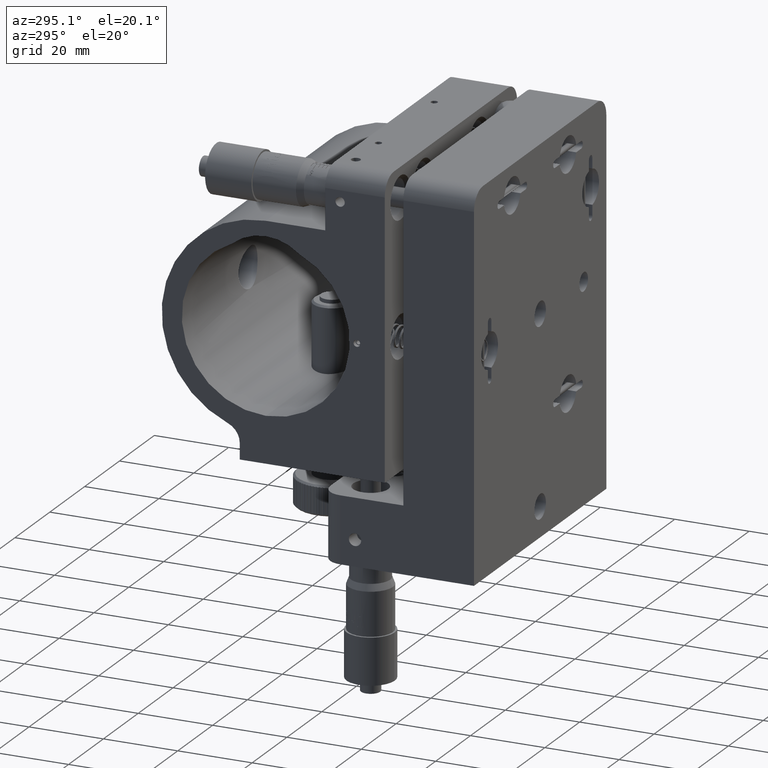
[diagram: clean part render]
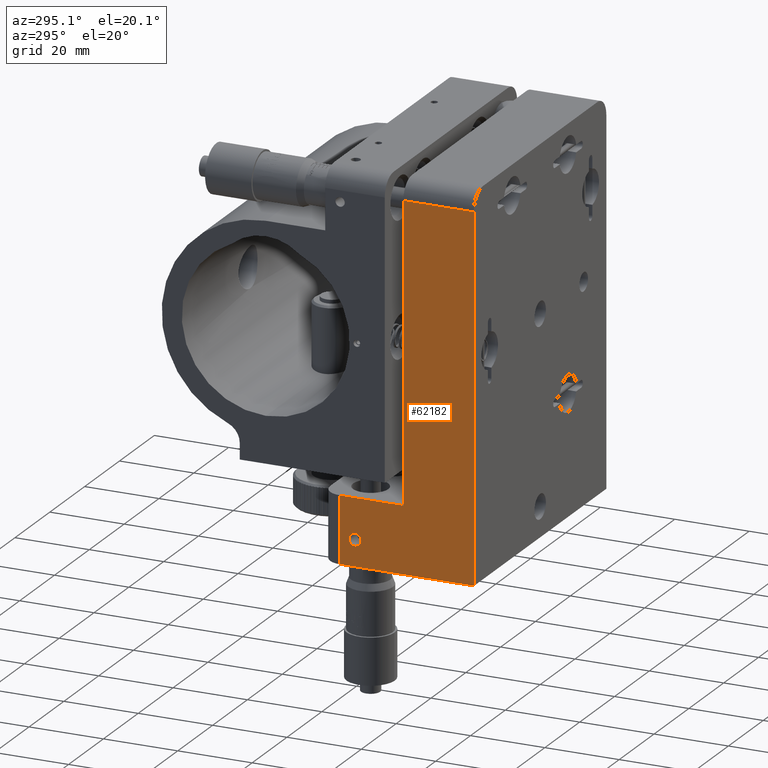
[diagram: same view with one face highlighted and labeled with its STEP entity id]
A machine part, auxiliary view. The second image highlights one B-rep face of the part: STEP entity #62182.
In plain terms, the highlighted planar face has unit normal (1, 0, -0).
Its self-contained STEP definition (entity closure, byte-faithful):
#358 = CARTESIAN_POINT ( 'NONE',  ( -38.00000000000000000, 19.00000000000000700, 38.99999999999997200 ) ) ;
#957 = VERTEX_POINT ( 'NONE', #37516 ) ;
#1560 = CARTESIAN_POINT ( 'NONE',  ( -38.00000000000000000, 40.99999999999999300, 39.00000000000000000 ) ) ;
#1947 = DIRECTION ( 'NONE',  ( 1.000000000000000000, 0.0000000000000000000, -0.0000000000000000000 ) ) ;
#1954 = CARTESIAN_POINT ( 'NONE',  ( -38.00000000000000000, 36.00000000000000000, -40.10000000000000100 ) ) ;
#2953 = EDGE_CURVE ( 'NONE', #67711, #26888, #12588, .T. ) ;
#5286 = DIRECTION ( 'NONE',  ( -0.0000000000000000000, 1.000000000000000000, -1.692413147294446000E-016 ) ) ;
#5885 = ORIENTED_EDGE ( 'NONE', *, *, #40097, .F. ) ;
#7646 = VECTOR ( 'NONE', #49399, 1000.000000000000000 ) ;
#8906 = ORIENTED_EDGE ( 'NONE', *, *, #41297, .T. ) ;
#9159 = CARTESIAN_POINT ( 'NONE',  ( -38.00000000000000000, 36.00000000000000000, -58.00000000000000700 ) ) ;
#9248 = PLANE ( 'NONE',  #80272 ) ;
#9552 = CARTESIAN_POINT ( 'NONE',  ( -38.00000000000000000, 36.00000000000000000, -40.10000000000000100 ) ) ;
#9851 = CARTESIAN_POINT ( 'NONE',  ( -38.00000000000000000, 40.99999999999999300, -40.10000000000000100 ) ) ;
#11684 = CARTESIAN_POINT ( 'NONE',  ( -38.00000000000000000, 40.99999999999999300, -58.00000000000000700 ) ) ;
#12588 = CIRCLE ( 'NONE', #25387, 1.649999999999991700 ) ;
#12862 = FACE_OUTER_BOUND ( 'NONE', #60479, .T. ) ;
#13967 = ORIENTED_EDGE ( 'NONE', *, *, #53895, .F. ) ;
#14387 = VERTEX_POINT ( 'NONE', #358 ) ;
#15571 = DIRECTION ( 'NONE',  ( 0.0000000000000000000, 1.237614846119006200E-016, 1.000000000000000000 ) ) ;
#15580 = LINE ( 'NONE', #9851, #89790 ) ;
#15700 = LINE ( 'NONE', #9552, #47395 ) ;
#16674 = ORIENTED_EDGE ( 'NONE', *, *, #72063, .F. ) ;
#20676 = DIRECTION ( 'NONE',  ( -1.000000000000000000, -0.0000000000000000000, -0.0000000000000000000 ) ) ;
#25387 = AXIS2_PLACEMENT_3D ( 'NONE', #84430, #20676, #42653 ) ;
#26888 = VERTEX_POINT ( 'NONE', #44987 ) ;
#27357 = CARTESIAN_POINT ( 'NONE',  ( -38.00000000000000000, 32.00000000000000700, -51.00000000000000700 ) ) ;
#29072 = AXIS2_PLACEMENT_3D ( 'NONE', #27357, #82904, #90193 ) ;
#33399 = VERTEX_POINT ( 'NONE', #1954 ) ;
#34310 = LINE ( 'NONE', #63158, #38727 ) ;
#34525 = CARTESIAN_POINT ( 'NONE',  ( -38.00000000000000000, -1.065407527825468400E-014, -58.00000000000000000 ) ) ;
#35223 = FACE_BOUND ( 'NONE', #45246, .T. ) ;
#37516 = CARTESIAN_POINT ( 'NONE',  ( -38.00000000000000000, 18.99999999999999600, -40.10000000000000100 ) ) ;
#38541 = LINE ( 'NONE', #45581, #74659 ) ;
#38727 = VECTOR ( 'NONE', #15571, 1000.000000000000000 ) ;
#40097 = EDGE_CURVE ( 'NONE', #66201, #48988, #84573, .T. ) ;
#40288 = DIRECTION ( 'NONE',  ( -0.0000000000000000000, -0.0000000000000000000, -1.000000000000000000 ) ) ;
#40323 = EDGE_CURVE ( 'NONE', #957, #14387, #34310, .T. ) ;
#41297 = EDGE_CURVE ( 'NONE', #33399, #48988, #15700, .T. ) ;
#41438 = ORIENTED_EDGE ( 'NONE', *, *, #52652, .F. ) ;
#42653 = DIRECTION ( 'NONE',  ( 0.0000000000000000000, 0.0000000000000000000, 1.000000000000000000 ) ) ;
#44656 = DIRECTION ( 'NONE',  ( 0.0000000000000000000, -1.000000000000000000, 0.0000000000000000000 ) ) ;
#44987 = CARTESIAN_POINT ( 'NONE',  ( -38.00000000000000000, 32.00000000000000700, -52.64999999999999900 ) ) ;
#45246 = EDGE_LOOP ( 'NONE', ( #67887, #13967 ) ) ;
#45313 = VECTOR ( 'NONE', #5286, 1000.000000000000000 ) ;
#45581 = CARTESIAN_POINT ( 'NONE',  ( -38.00000000000000000, -1.065407527825468400E-014, -58.00000000000000000 ) ) ;
#47395 = VECTOR ( 'NONE', #40288, 1000.000000000000000 ) ;
#48988 = VERTEX_POINT ( 'NONE', #9159 ) ;
#49399 = DIRECTION ( 'NONE',  ( -0.0000000000000000000, 1.000000000000000000, -0.0000000000000000000 ) ) ;
#50721 = DIRECTION ( 'NONE',  ( -0.0000000000000000000, 0.0000000000000000000, -1.000000000000000000 ) ) ;
#52652 = EDGE_CURVE ( 'NONE', #33399, #957, #15580, .T. ) ;
#53895 = EDGE_CURVE ( 'NONE', #26888, #67711, #85258, .T. ) ;
#54552 = LINE ( 'NONE', #1560, #7646 ) ;
#58063 = CARTESIAN_POINT ( 'NONE',  ( -38.00000000000000000, 40.99999999999999300, -40.10000000000000100 ) ) ;
#60120 = ORIENTED_EDGE ( 'NONE', *, *, #40323, .F. ) ;
#60479 = EDGE_LOOP ( 'NONE', ( #41438, #8906, #5885, #16674, #64406, #60120 ) ) ;
#60821 = DIRECTION ( 'NONE',  ( -0.0000000000000000000, -1.836909530733565600E-016, -1.000000000000000000 ) ) ;
#62182 = ADVANCED_FACE ( 'NONE', ( #35223, #12862 ), #9248, .F. ) ;
#63158 = CARTESIAN_POINT ( 'NONE',  ( -38.00000000000000000, 18.99999999999999600, -40.10000000000000100 ) ) ;
#64406 = ORIENTED_EDGE ( 'NONE', *, *, #76637, .T. ) ;
#66201 = VERTEX_POINT ( 'NONE', #34525 ) ;
#67207 = CARTESIAN_POINT ( 'NONE',  ( -38.00000000000000000, 32.00000000000000700, -49.35000000000000900 ) ) ;
#67711 = VERTEX_POINT ( 'NONE', #67207 ) ;
#67887 = ORIENTED_EDGE ( 'NONE', *, *, #2953, .F. ) ;
#72063 = EDGE_CURVE ( 'NONE', #73022, #66201, #38541, .T. ) ;
#73022 = VERTEX_POINT ( 'NONE', #78665 ) ;
#74659 = VECTOR ( 'NONE', #60821, 1000.000000000000000 ) ;
#76637 = EDGE_CURVE ( 'NONE', #73022, #14387, #54552, .T. ) ;
#78665 = CARTESIAN_POINT ( 'NONE',  ( -38.00000000000000000, 7.163947169860903800E-015, 39.00000000000000000 ) ) ;
#80272 = AXIS2_PLACEMENT_3D ( 'NONE', #58063, #1947, #50721 ) ;
#82904 = DIRECTION ( 'NONE',  ( -1.000000000000000000, -0.0000000000000000000, -0.0000000000000000000 ) ) ;
#84430 = CARTESIAN_POINT ( 'NONE',  ( -38.00000000000000000, 32.00000000000000700, -51.00000000000000700 ) ) ;
#84573 = LINE ( 'NONE', #11684, #45313 ) ;
#85258 = CIRCLE ( 'NONE', #29072, 1.649999999999991700 ) ;
#89790 = VECTOR ( 'NONE', #44656, 1000.000000000000000 ) ;
#90193 = DIRECTION ( 'NONE',  ( 0.0000000000000000000, 0.0000000000000000000, 1.000000000000000000 ) ) ;